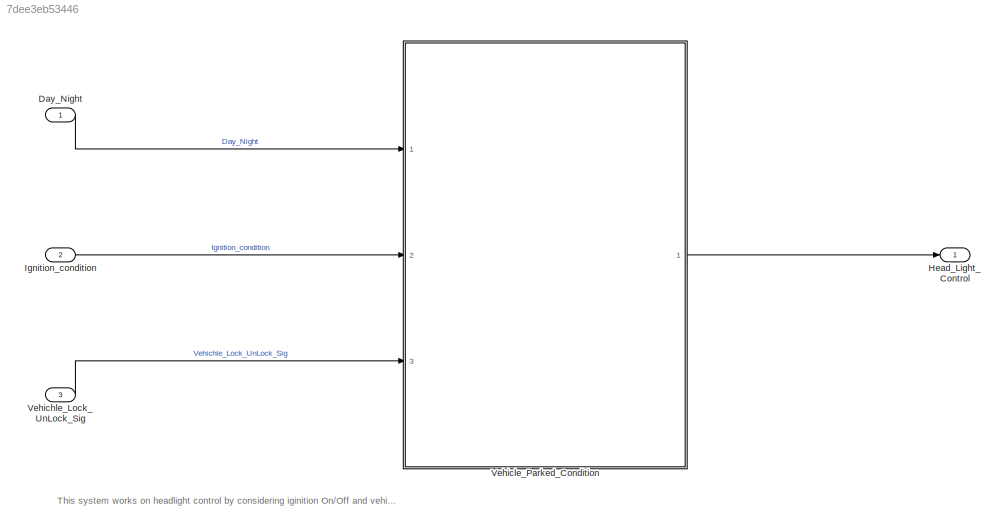
MODEL slx_7dee3eb53446
KIND model
CONFIG AbsTol = auto
CONFIG EnableMultiTasking = off
CONFIG FixedStep = 0.08
CONFIG MaxStep = auto
CONFIG MinStep = auto
CONFIG RelTol = 1e-3
CONFIG SampleTimeConstraint = Unconstrained
CONFIG Solver = FixedStepDiscrete
CONFIG SolverName = FixedStepDiscrete
CONFIG StartTime = 0.0
CONFIG StopTime = 10.0
BLOCK [Inport] Day_Night
  IconDisplay = Port number
BLOCK [Outport] Head_Light_Control
  IconDisplay = Port number
  VectorParamsAs1DForOutWhenUnconnected = on
BLOCK [Inport] Ignition_condition
  IconDisplay = Port number
  Port = 2
BLOCK [Inport] Vehichle_Lock_UnLock_Sig
  IconDisplay = Port number
  Port = 3
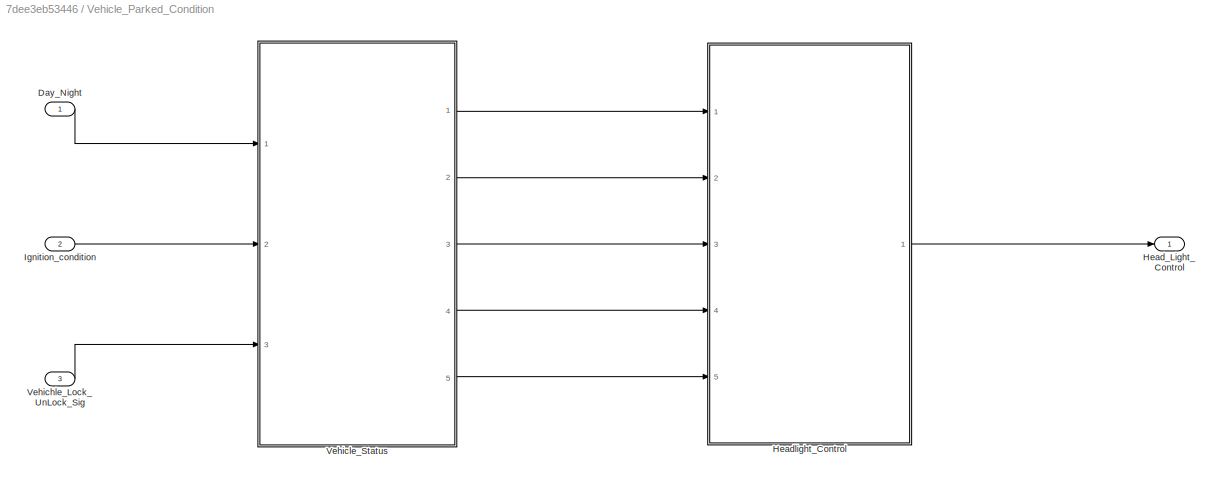
BLOCK [SubSystem] Vehicle_Parked_Condition
  Ports = [3, 1]
  RequestExecContextInheritance = off
BLOCK [Inport] Vehicle_Parked_Condition/Day_Night
  IconDisplay = Port number
BLOCK [Outport] Vehicle_Parked_Condition/Head_Light_Control
  IconDisplay = Port number
  VectorParamsAs1DForOutWhenUnconnected = on
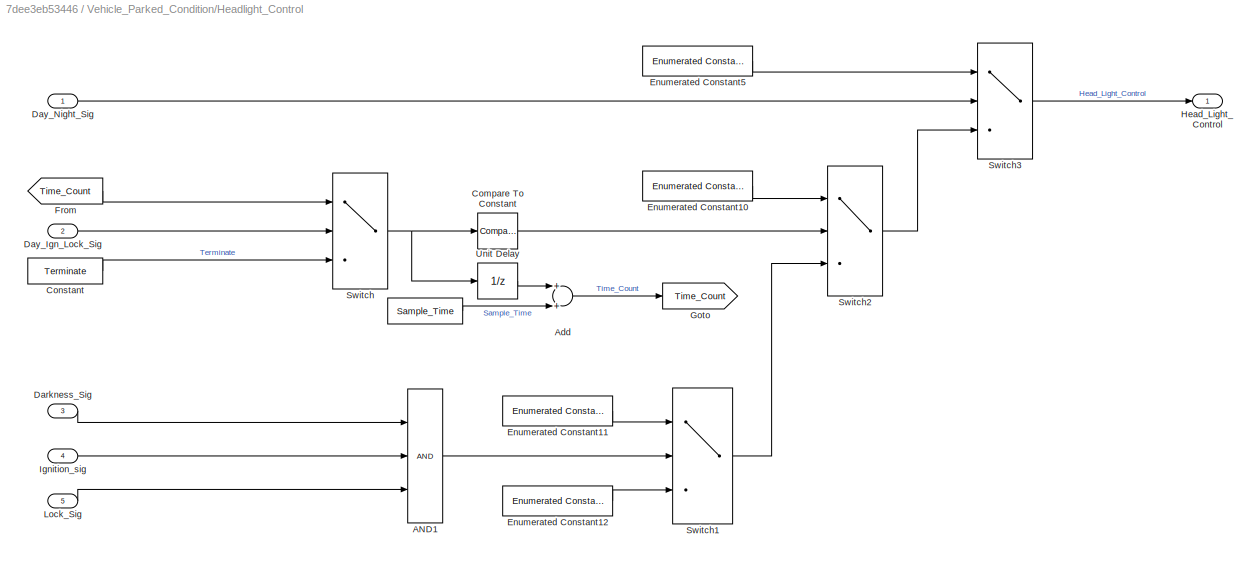
BLOCK [SubSystem] Vehicle_Parked_Condition/Headlight_Control
  Ports = [5, 1]
  RequestExecContextInheritance = off
BLOCK [Constant] Vehicle_Parked_Condition/Headlight_Control/ 
  Value = Sample_Time
BLOCK [Logic] Vehicle_Parked_Condition/Headlight_Control/AND1
  AllPortsSameDT = off
  Inputs = 3
  OutDataTypeStr = boolean
  Ports = [3, 1]
BLOCK [Sum] Vehicle_Parked_Condition/Headlight_Control/Add
  InputSameDT = off
  OutDataTypeStr = Inherit: Inherit via internal rule
  Ports = [2, 1]
  SaturateOnIntegerOverflow = off
BLOCK [Reference] Vehicle_Parked_Condition/Headlight_Control/Compare To Constant  REF=simulink/Logic and Bit
Operations/Compare
To Constant
  Ports = [1, 1]
  SourceBlock = simulink/Logic and Bit\nOperations/Compare\nTo Constant
  SourceProductBaseCode = SL
  SourceProductName = Simulink
  SourceType = Compare To Constant
BLOCK [Constant] Vehicle_Parked_Condition/Headlight_Control/Constant
  Value = Terminate
BLOCK [Inport] Vehicle_Parked_Condition/Headlight_Control/Darkness_Sig
  IconDisplay = Port number
  Port = 3
BLOCK [Inport] Vehicle_Parked_Condition/Headlight_Control/Day_Ign_Lock_Sig
  IconDisplay = Port number
  Port = 2
BLOCK [Inport] Vehicle_Parked_Condition/Headlight_Control/Day_Night_Sig
  IconDisplay = Port number
BLOCK [Reference] Vehicle_Parked_Condition/Headlight_Control/Enumerated Constant10  REF=simulink/Sources/Enumerated
Constant
  Ports = [0, 1]
  SourceBlock = simulink/Sources/Enumerated\nConstant
  SourceProductBaseCode = SL
  SourceProductName = Simulink
  SourceType = Enumerated Constant
BLOCK [Reference] Vehicle_Parked_Condition/Headlight_Control/Enumerated Constant11  REF=simulink/Sources/Enumerated
Constant
  Ports = [0, 1]
  SourceBlock = simulink/Sources/Enumerated\nConstant
  SourceProductBaseCode = SL
  SourceProductName = Simulink
  SourceType = Enumerated Constant
BLOCK [Reference] Vehicle_Parked_Condition/Headlight_Control/Enumerated Constant12  REF=simulink/Sources/Enumerated
Constant
  Ports = [0, 1]
  SourceBlock = simulink/Sources/Enumerated\nConstant
  SourceProductBaseCode = SL
  SourceProductName = Simulink
  SourceType = Enumerated Constant
BLOCK [Reference] Vehicle_Parked_Condition/Headlight_Control/Enumerated Constant5  REF=simulink/Sources/Enumerated
Constant
  Ports = [0, 1]
  SourceBlock = simulink/Sources/Enumerated\nConstant
  SourceProductBaseCode = SL
  SourceProductName = Simulink
  SourceType = Enumerated Constant
BLOCK [From] Vehicle_Parked_Condition/Headlight_Control/From
  GotoTag = Time_Count
BLOCK [Goto] Vehicle_Parked_Condition/Headlight_Control/Goto
  GotoTag = Time_Count
BLOCK [Outport] Vehicle_Parked_Condition/Headlight_Control/Head_Light_Control
  IconDisplay = Port number
  VectorParamsAs1DForOutWhenUnconnected = on
BLOCK [Inport] Vehicle_Parked_Condition/Headlight_Control/Ignition_sig
  IconDisplay = Port number
  Port = 4
BLOCK [Inport] Vehicle_Parked_Condition/Headlight_Control/Lock_Sig
  IconDisplay = Port number
  Port = 5
BLOCK [Switch] Vehicle_Parked_Condition/Headlight_Control/Switch
  Criteria = u2 ~= 0
  InputSameDT = off
  SaturateOnIntegerOverflow = off
BLOCK [Switch] Vehicle_Parked_Condition/Headlight_Control/Switch1
  Criteria = u2 ~= 0
  InputSameDT = off
  SaturateOnIntegerOverflow = off
BLOCK [Switch] Vehicle_Parked_Condition/Headlight_Control/Switch2
  Criteria = u2 ~= 0
  InputSameDT = off
  SaturateOnIntegerOverflow = off
BLOCK [Switch] Vehicle_Parked_Condition/Headlight_Control/Switch3
  Criteria = u2 ~= 0
  InputSameDT = off
  OutDataTypeStr = Inherit: Inherit via back propagation
  SaturateOnIntegerOverflow = off
BLOCK [UnitDelay] Vehicle_Parked_Condition/Headlight_Control/Unit Delay
  HasFrameUpgradeWarning = on
  SampleTime = -1
BLOCK [Inport] Vehicle_Parked_Condition/Ignition_condition
  IconDisplay = Port number
  Port = 2
BLOCK [Inport] Vehicle_Parked_Condition/Vehichle_Lock_UnLock_Sig
  IconDisplay = Port number
  Port = 3
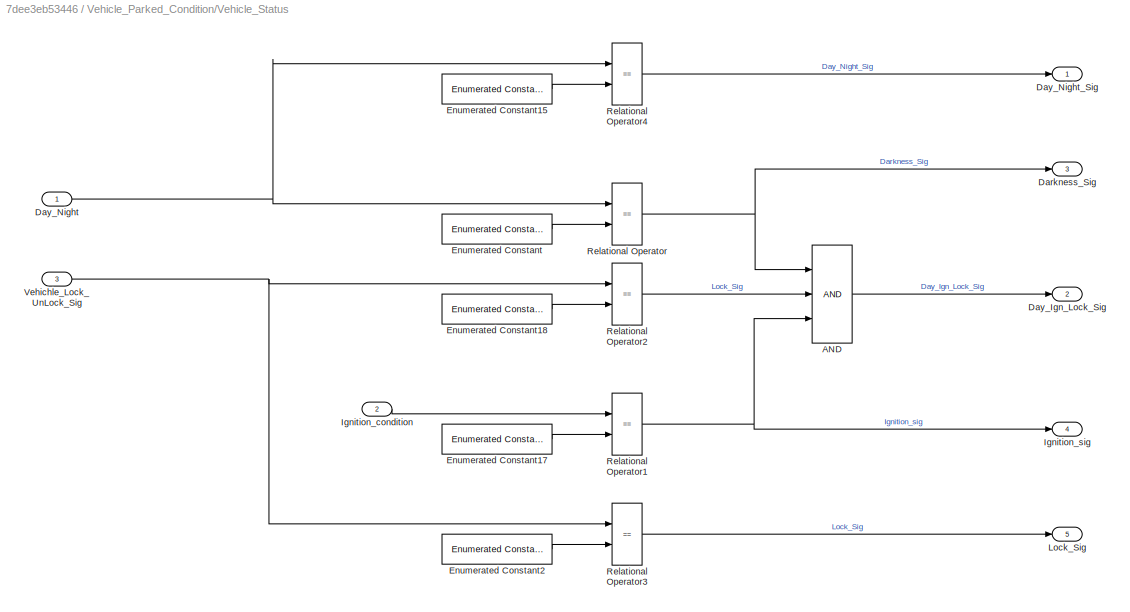
BLOCK [SubSystem] Vehicle_Parked_Condition/Vehicle_Status
  Ports = [3, 5]
  RequestExecContextInheritance = off
BLOCK [Logic] Vehicle_Parked_Condition/Vehicle_Status/AND
  AllPortsSameDT = off
  Inputs = 3
  OutDataTypeStr = boolean
  Ports = [3, 1]
BLOCK [Outport] Vehicle_Parked_Condition/Vehicle_Status/Darkness_Sig
  IconDisplay = Port number
  Port = 3
  VectorParamsAs1DForOutWhenUnconnected = on
BLOCK [Outport] Vehicle_Parked_Condition/Vehicle_Status/Day_Ign_Lock_Sig
  IconDisplay = Port number
  Port = 2
  VectorParamsAs1DForOutWhenUnconnected = on
BLOCK [Inport] Vehicle_Parked_Condition/Vehicle_Status/Day_Night
  IconDisplay = Port number
BLOCK [Outport] Vehicle_Parked_Condition/Vehicle_Status/Day_Night_Sig
  IconDisplay = Port number
  VectorParamsAs1DForOutWhenUnconnected = on
BLOCK [Reference] Vehicle_Parked_Condition/Vehicle_Status/Enumerated Constant  REF=simulink/Sources/Enumerated
Constant
  Ports = [0, 1]
  SourceBlock = simulink/Sources/Enumerated\nConstant
  SourceProductBaseCode = SL
  SourceProductName = Simulink
  SourceType = Enumerated Constant
BLOCK [Reference] Vehicle_Parked_Condition/Vehicle_Status/Enumerated Constant15  REF=simulink/Sources/Enumerated
Constant
  Ports = [0, 1]
  SourceBlock = simulink/Sources/Enumerated\nConstant
  SourceProductBaseCode = SL
  SourceProductName = Simulink
  SourceType = Enumerated Constant
BLOCK [Reference] Vehicle_Parked_Condition/Vehicle_Status/Enumerated Constant17  REF=simulink/Sources/Enumerated
Constant
  Ports = [0, 1]
  SourceBlock = simulink/Sources/Enumerated\nConstant
  SourceProductBaseCode = SL
  SourceProductName = Simulink
  SourceType = Enumerated Constant
BLOCK [Reference] Vehicle_Parked_Condition/Vehicle_Status/Enumerated Constant18  REF=simulink/Sources/Enumerated
Constant
  Ports = [0, 1]
  SourceBlock = simulink/Sources/Enumerated\nConstant
  SourceProductBaseCode = SL
  SourceProductName = Simulink
  SourceType = Enumerated Constant
BLOCK [Reference] Vehicle_Parked_Condition/Vehicle_Status/Enumerated Constant2  REF=simulink/Sources/Enumerated
Constant
  Ports = [0, 1]
  SourceBlock = simulink/Sources/Enumerated\nConstant
  SourceProductBaseCode = SL
  SourceProductName = Simulink
  SourceType = Enumerated Constant
BLOCK [Inport] Vehicle_Parked_Condition/Vehicle_Status/Ignition_condition
  IconDisplay = Port number
  Port = 2
BLOCK [Outport] Vehicle_Parked_Condition/Vehicle_Status/Ignition_sig
  IconDisplay = Port number
  Port = 4
  VectorParamsAs1DForOutWhenUnconnected = on
BLOCK [Outport] Vehicle_Parked_Condition/Vehicle_Status/Lock_Sig
  IconDisplay = Port number
  Port = 5
  VectorParamsAs1DForOutWhenUnconnected = on
BLOCK [RelationalOperator] Vehicle_Parked_Condition/Vehicle_Status/Relational Operator
  InputSameDT = off
  Operator = ==
  OutDataTypeStr = boolean
  Ports = [2, 1]
  RndMeth = Simplest
BLOCK [RelationalOperator] Vehicle_Parked_Condition/Vehicle_Status/Relational Operator1
  InputSameDT = off
  Operator = ==
  OutDataTypeStr = boolean
  Ports = [2, 1]
  RndMeth = Simplest
BLOCK [RelationalOperator] Vehicle_Parked_Condition/Vehicle_Status/Relational Operator2
  InputSameDT = off
  Operator = ==
  OutDataTypeStr = boolean
  Ports = [2, 1]
  RndMeth = Simplest
BLOCK [RelationalOperator] Vehicle_Parked_Condition/Vehicle_Status/Relational Operator3
  InputSameDT = off
  Operator = ==
  OutDataTypeStr = boolean
  Ports = [2, 1]
  RndMeth = Simplest
BLOCK [RelationalOperator] Vehicle_Parked_Condition/Vehicle_Status/Relational Operator4
  InputSameDT = off
  Operator = ==
  OutDataTypeStr = boolean
  Ports = [2, 1]
  RndMeth = Simplest
BLOCK [Inport] Vehicle_Parked_Condition/Vehicle_Status/Vehichle_Lock_UnLock_Sig
  IconDisplay = Port number
  Port = 3
ANNOTATION (root): This system works on headlight control by considering iginition On/Off and vehicle Lock/Unlock condition in day and night situation
LINE Day_Night:1 -> Vehicle_Parked_Condition:1
LINE Ignition_condition:1 -> Vehicle_Parked_Condition:2
LINE Vehichle_Lock_UnLock_Sig:1 -> Vehicle_Parked_Condition:3
LINE Vehicle_Parked_Condition/Day_Night:1 -> Vehicle_Parked_Condition/Vehicle_Status:1
LINE Vehicle_Parked_Condition/Headlight_Control/ :1 -> Vehicle_Parked_Condition/Headlight_Control/Add:2
LINE Vehicle_Parked_Condition/Headlight_Control/AND1:1 -> Vehicle_Parked_Condition/Headlight_Control/Switch1:2
LINE Vehicle_Parked_Condition/Headlight_Control/Add:1 -> Vehicle_Parked_Condition/Headlight_Control/Goto:1
LINE Vehicle_Parked_Condition/Headlight_Control/Compare To Constant:1 -> Vehicle_Parked_Condition/Headlight_Control/Switch2:2
LINE Vehicle_Parked_Condition/Headlight_Control/Constant:1 -> Vehicle_Parked_Condition/Headlight_Control/Switch:3
LINE Vehicle_Parked_Condition/Headlight_Control/Darkness_Sig:1 -> Vehicle_Parked_Condition/Headlight_Control/AND1:1
LINE Vehicle_Parked_Condition/Headlight_Control/Day_Ign_Lock_Sig:1 -> Vehicle_Parked_Condition/Headlight_Control/Switch:2
LINE Vehicle_Parked_Condition/Headlight_Control/Day_Night_Sig:1 -> Vehicle_Parked_Condition/Headlight_Control/Switch3:2
LINE Vehicle_Parked_Condition/Headlight_Control/Enumerated Constant10:1 -> Vehicle_Parked_Condition/Headlight_Control/Switch2:1
LINE Vehicle_Parked_Condition/Headlight_Control/Enumerated Constant11:1 -> Vehicle_Parked_Condition/Headlight_Control/Switch1:1
LINE Vehicle_Parked_Condition/Headlight_Control/Enumerated Constant12:1 -> Vehicle_Parked_Condition/Headlight_Control/Switch1:3
LINE Vehicle_Parked_Condition/Headlight_Control/Enumerated Constant5:1 -> Vehicle_Parked_Condition/Headlight_Control/Switch3:1
LINE Vehicle_Parked_Condition/Headlight_Control/From:1 -> Vehicle_Parked_Condition/Headlight_Control/Switch:1
LINE Vehicle_Parked_Condition/Headlight_Control/Ignition_sig:1 -> Vehicle_Parked_Condition/Headlight_Control/AND1:2
LINE Vehicle_Parked_Condition/Headlight_Control/Lock_Sig:1 -> Vehicle_Parked_Condition/Headlight_Control/AND1:3
LINE Vehicle_Parked_Condition/Headlight_Control/Switch1:1 -> Vehicle_Parked_Condition/Headlight_Control/Switch2:3
LINE Vehicle_Parked_Condition/Headlight_Control/Switch2:1 -> Vehicle_Parked_Condition/Headlight_Control/Switch3:3
LINE Vehicle_Parked_Condition/Headlight_Control/Switch3:1 -> Vehicle_Parked_Condition/Headlight_Control/Head_Light_Control:1
NET Vehicle_Parked_Condition/Headlight_Control/Switch:1 -> Vehicle_Parked_Condition/Headlight_Control/Compare To Constant:1, Vehicle_Parked_Condition/Headlight_Control/Unit Delay:1
LINE Vehicle_Parked_Condition/Headlight_Control/Unit Delay:1 -> Vehicle_Parked_Condition/Headlight_Control/Add:1
LINE Vehicle_Parked_Condition/Headlight_Control:1 -> Vehicle_Parked_Condition/Head_Light_Control:1
LINE Vehicle_Parked_Condition/Ignition_condition:1 -> Vehicle_Parked_Condition/Vehicle_Status:2
LINE Vehicle_Parked_Condition/Vehichle_Lock_UnLock_Sig:1 -> Vehicle_Parked_Condition/Vehicle_Status:3
LINE Vehicle_Parked_Condition/Vehicle_Status/AND:1 -> Vehicle_Parked_Condition/Vehicle_Status/Day_Ign_Lock_Sig:1
NET Vehicle_Parked_Condition/Vehicle_Status/Day_Night:1 -> Vehicle_Parked_Condition/Vehicle_Status/Relational Operator4:1, Vehicle_Parked_Condition/Vehicle_Status/Relational Operator:1
LINE Vehicle_Parked_Condition/Vehicle_Status/Enumerated Constant15:1 -> Vehicle_Parked_Condition/Vehicle_Status/Relational Operator4:2
LINE Vehicle_Parked_Condition/Vehicle_Status/Enumerated Constant17:1 -> Vehicle_Parked_Condition/Vehicle_Status/Relational Operator1:2
LINE Vehicle_Parked_Condition/Vehicle_Status/Enumerated Constant18:1 -> Vehicle_Parked_Condition/Vehicle_Status/Relational Operator2:2
LINE Vehicle_Parked_Condition/Vehicle_Status/Enumerated Constant2:1 -> Vehicle_Parked_Condition/Vehicle_Status/Relational Operator3:2
LINE Vehicle_Parked_Condition/Vehicle_Status/Enumerated Constant:1 -> Vehicle_Parked_Condition/Vehicle_Status/Relational Operator:2
LINE Vehicle_Parked_Condition/Vehicle_Status/Ignition_condition:1 -> Vehicle_Parked_Condition/Vehicle_Status/Relational Operator1:1
NET Vehicle_Parked_Condition/Vehicle_Status/Relational Operator1:1 -> Vehicle_Parked_Condition/Vehicle_Status/AND:3, Vehicle_Parked_Condition/Vehicle_Status/Ignition_sig:1
LINE Vehicle_Parked_Condition/Vehicle_Status/Relational Operator2:1 -> Vehicle_Parked_Condition/Vehicle_Status/AND:2
LINE Vehicle_Parked_Condition/Vehicle_Status/Relational Operator3:1 -> Vehicle_Parked_Condition/Vehicle_Status/Lock_Sig:1
LINE Vehicle_Parked_Condition/Vehicle_Status/Relational Operator4:1 -> Vehicle_Parked_Condition/Vehicle_Status/Day_Night_Sig:1
NET Vehicle_Parked_Condition/Vehicle_Status/Relational Operator:1 -> Vehicle_Parked_Condition/Vehicle_Status/AND:1, Vehicle_Parked_Condition/Vehicle_Status/Darkness_Sig:1
NET Vehicle_Parked_Condition/Vehicle_Status/Vehichle_Lock_UnLock_Sig:1 -> Vehicle_Parked_Condition/Vehicle_Status/Relational Operator2:1, Vehicle_Parked_Condition/Vehicle_Status/Relational Operator3:1
LINE Vehicle_Parked_Condition/Vehicle_Status:1 -> Vehicle_Parked_Condition/Headlight_Control:1
LINE Vehicle_Parked_Condition/Vehicle_Status:2 -> Vehicle_Parked_Condition/Headlight_Control:2
LINE Vehicle_Parked_Condition/Vehicle_Status:3 -> Vehicle_Parked_Condition/Headlight_Control:3
LINE Vehicle_Parked_Condition/Vehicle_Status:4 -> Vehicle_Parked_Condition/Headlight_Control:4
LINE Vehicle_Parked_Condition/Vehicle_Status:5 -> Vehicle_Parked_Condition/Headlight_Control:5
LINE Vehicle_Parked_Condition:1 -> Head_Light_Control:1
note: NET lines group one-source signal fan-out (src -> all destinations, sorted); 1:1 wires keep LINE
